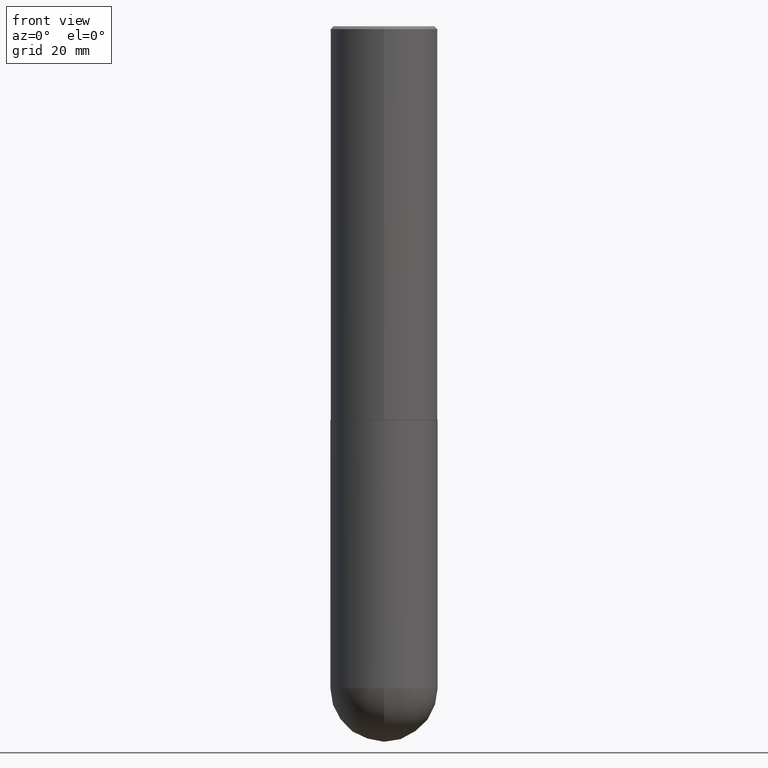
[diagram: clean part render]
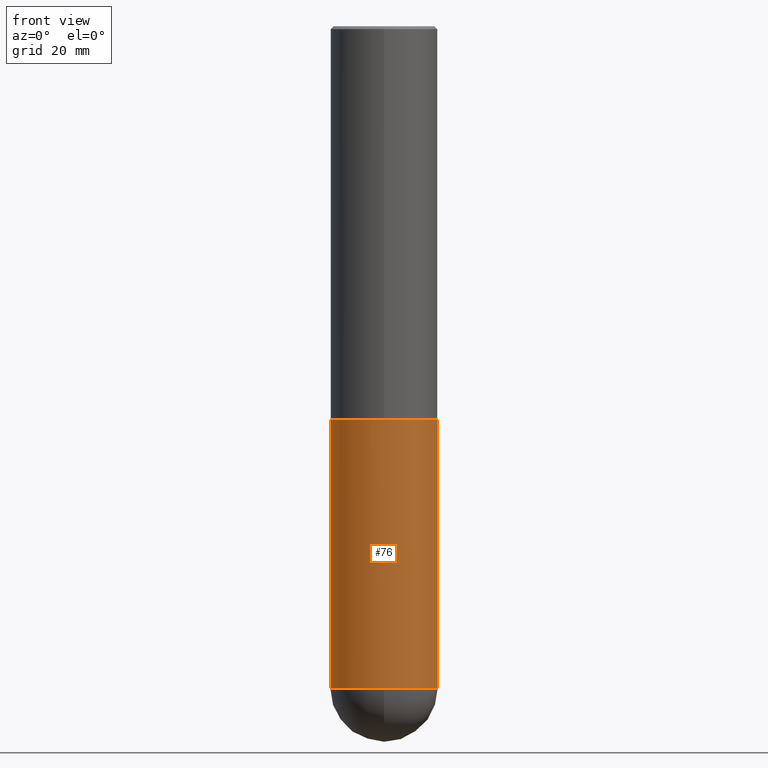
[diagram: same view with one face highlighted and labeled with its STEP entity id]
A machine part, front view. The second image highlights one B-rep face of the part: STEP entity #76.
In plain terms, the highlighted cylindrical surface (partial cylindrical patch) has radius 9.525 mm, axis along (-0, 0, 1).
Its self-contained STEP definition (entity closure, byte-faithful):
#3 = CARTESIAN_POINT ( 'NONE',  ( 1.131029322860625676E-28, -1.614810119214955014E-14, -4.625000000000000000 ) ) ;
#16 = AXIS2_PLACEMENT_3D ( 'NONE', #3, #136, #168 ) ;
#21 = DIRECTION ( 'NONE',  ( -2.445468806185136877E-29, 3.491481338843145188E-15, 1.000000000000000000 ) ) ;
#52 = CARTESIAN_POINT ( 'NONE',  ( 0.3750000000000001110, -2.618611004132350411E-15, 1.828566290923476483E-29 ) ) ;
#61 = CARTESIAN_POINT ( 'NONE',  ( -0.3750000000000001110, -1.021030217788372352E-14, -4.625000000000000000 ) ) ;
#67 = AXIS2_PLACEMENT_3D ( 'NONE', #213, #277, #369 ) ;
#71 = VERTEX_POINT ( 'NONE', #61 ) ;
#76 = ADVANCED_FACE ( 'NONE', ( #303 ), #300, .T. ) ;
#83 = EDGE_CURVE ( 'NONE', #408, #310, #367, .T. ) ;
#84 = CARTESIAN_POINT ( 'NONE',  ( 0.000000000000000000, 0.000000000000000000, 0.000000000000000000 ) ) ;
#100 = CARTESIAN_POINT ( 'NONE',  ( -2.664535259100265651E-15, -0.3750000000000165978, -4.624999999999999112 ) ) ;
#104 = VERTEX_POINT ( 'NONE', #298 ) ;
#108 = CARTESIAN_POINT ( 'NONE',  ( -0.3750000000000001110, 2.664535259100376486E-15, -1.844600658845590159E-29 ) ) ;
#124 = DIRECTION ( 'NONE',  ( -2.445468806185136597E-29, 3.491481338843145583E-15, 1.000000000000000000 ) ) ;
#136 = DIRECTION ( 'NONE',  ( -2.445468806185136597E-29, 3.491481338843145583E-15, 1.000000000000000000 ) ) ;
#142 = ORIENTED_EDGE ( 'NONE', *, *, #193, .T. ) ;
#167 = ORIENTED_EDGE ( 'NONE', *, *, #229, .F. ) ;
#168 = DIRECTION ( 'NONE',  ( 1.000000000000000000, -6.982962677686270655E-15, 0.000000000000000000 ) ) ;
#179 = AXIS2_PLACEMENT_3D ( 'NONE', #279, #124, #342 ) ;
#184 = CIRCLE ( 'NONE', #67, 0.3750000000000001110 ) ;
#186 = CARTESIAN_POINT ( 'NONE',  ( 0.3750000000000001110, -1.549344844111645238E-14, -4.625000000000000000 ) ) ;
#193 = EDGE_CURVE ( 'NONE', #71, #362, #275, .T. ) ;
#213 = CARTESIAN_POINT ( 'NONE',  ( 1.131029322860625676E-28, -1.614810119214955014E-14, -4.625000000000000000 ) ) ;
#228 = ORIENTED_EDGE ( 'NONE', *, *, #83, .T. ) ;
#229 = EDGE_CURVE ( 'NONE', #104, #310, #360, .T. ) ;
#238 = EDGE_CURVE ( 'NONE', #362, #408, #184, .T. ) ;
#239 = DIRECTION ( 'NONE',  ( 1.000000000000000000, -6.982962677686265922E-15, 4.876176775795935793E-29 ) ) ;
#255 = CARTESIAN_POINT ( 'NONE',  ( 0.3750000000000000555, -1.222018468595100145E-14, -2.750000000000000000 ) ) ;
#275 = CIRCLE ( 'NONE', #16, 0.3750000000000001110 ) ;
#277 = DIRECTION ( 'NONE',  ( -2.445468806185136597E-29, 3.491481338843145583E-15, 1.000000000000000000 ) ) ;
#279 = CARTESIAN_POINT ( 'NONE',  ( 6.725039217009124520E-29, -9.601573681818649859E-15, -2.750000000000000000 ) ) ;
#289 = ORIENTED_EDGE ( 'NONE', *, *, #238, .T. ) ;
#298 = CARTESIAN_POINT ( 'NONE',  ( -0.3750000000000000555, -1.021030217788372194E-14, -2.750000000000000000 ) ) ;
#300 = CYLINDRICAL_SURFACE ( 'NONE', #403, 0.3750000000000001110 ) ;
#303 = FACE_OUTER_BOUND ( 'NONE', #319, .T. ) ;
#310 = VERTEX_POINT ( 'NONE', #255 ) ;
#319 = EDGE_LOOP ( 'NONE', ( #359, #142, #289, #228, #167 ) ) ;
#330 = DIRECTION ( 'NONE',  ( -2.445468806185136597E-29, 3.491481338843145583E-15, 1.000000000000000000 ) ) ;
#340 = VECTOR ( 'NONE', #356, 39.37007874015748143 ) ;
#342 = DIRECTION ( 'NONE',  ( 1.000000000000000000, -6.982962677686266711E-15, 0.000000000000000000 ) ) ;
#356 = DIRECTION ( 'NONE',  ( -2.445468806185136877E-29, 3.491481338843145188E-15, 1.000000000000000000 ) ) ;
#359 = ORIENTED_EDGE ( 'NONE', *, *, #374, .F. ) ;
#360 = CIRCLE ( 'NONE', #179, 0.3750000000000000555 ) ;
#362 = VERTEX_POINT ( 'NONE', #100 ) ;
#365 = VECTOR ( 'NONE', #21, 39.37007874015748143 ) ;
#367 = LINE ( 'NONE', #52, #365 ) ;
#369 = DIRECTION ( 'NONE',  ( 1.000000000000000000, -6.982962677686270655E-15, 0.000000000000000000 ) ) ;
#374 = EDGE_CURVE ( 'NONE', #71, #104, #389, .T. ) ;
#389 = LINE ( 'NONE', #108, #340 ) ;
#403 = AXIS2_PLACEMENT_3D ( 'NONE', #84, #330, #239 ) ;
#408 = VERTEX_POINT ( 'NONE', #186 ) ;